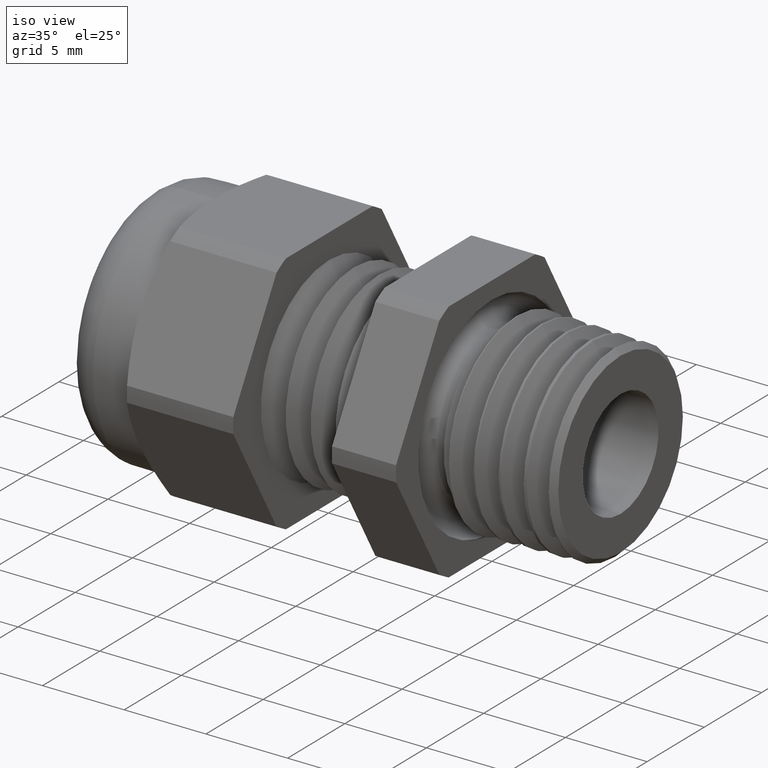
[diagram: clean part render]
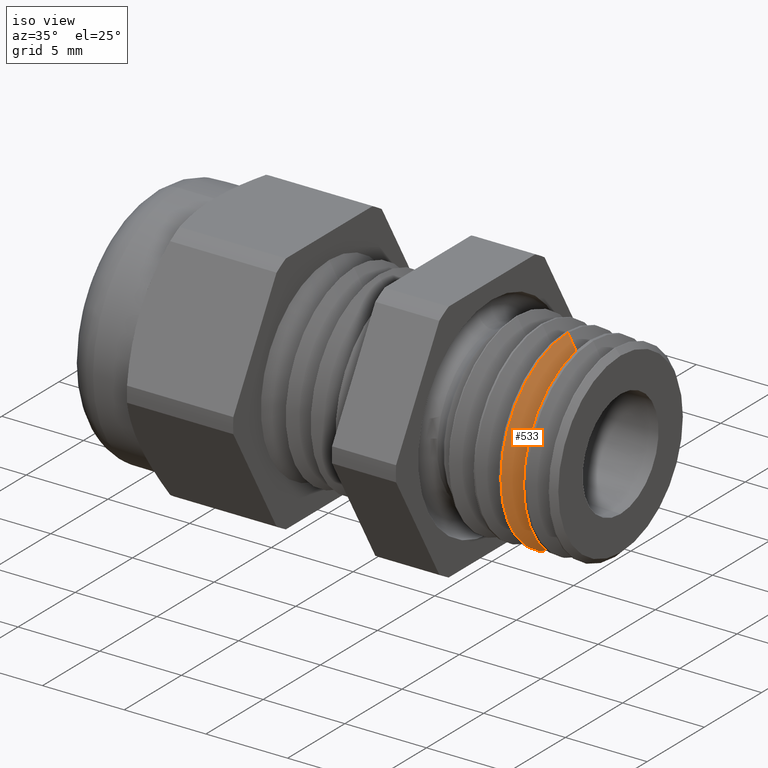
[diagram: same view with one face highlighted and labeled with its STEP entity id]
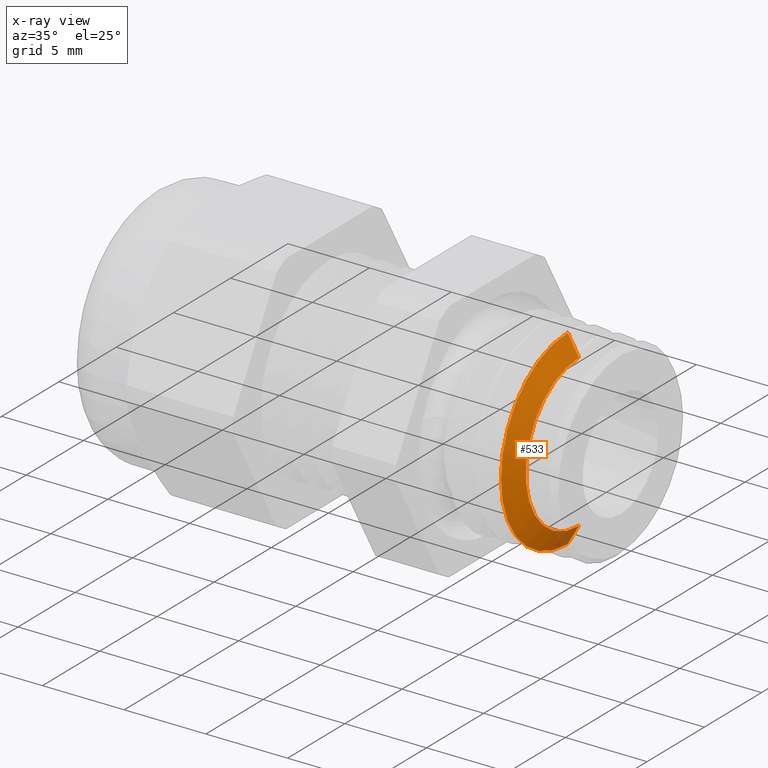
[diagram: x-ray of the same camera — body ghosted, the highlighted face saturated]
A machine part, iso view. The second image highlights one B-rep face of the part: STEP entity #533.
The next image is the same camera in x-ray: the body ghosted, the highlighted face saturated — about 4% of this face is hidden behind the body in this view.
In plain terms, the highlighted conical surface has half-angle 60 deg.
Its self-contained STEP definition (entity closure, byte-faithful):
#104 = EDGE_CURVE ( 'NONE', #228, #231, #1069, .T. ) ;
#226 = EDGE_CURVE ( 'NONE', #2861, #228, #1275, .T. ) ;
#228 = VERTEX_POINT ( 'NONE', #1267 ) ;
#231 = VERTEX_POINT ( 'NONE', #1326 ) ;
#232 = EDGE_CURVE ( 'NONE', #2868, #231, #1325, .T. ) ;
#515 = ORIENTED_EDGE ( 'NONE', *, *, #104, .T. ) ;
#533 = ADVANCED_FACE ( 'NONE', ( #1860 ), #1855, .T. ) ;
#534 = EDGE_LOOP ( 'NONE', ( #535, #536, #538, #515 ) ) ;
#535 = ORIENTED_EDGE ( 'NONE', *, *, #232, .F. ) ;
#536 = ORIENTED_EDGE ( 'NONE', *, *, #537, .T. ) ;
#537 = EDGE_CURVE ( 'NONE', #2868, #2861, #1849, .T. ) ;
#538 = ORIENTED_EDGE ( 'NONE', *, *, #226, .T. ) ;
#1065 = DIRECTION ( 'NONE',  ( 0.0000000000000000000, 0.0000000000000000000, 1.000000000000000000 ) ) ;
#1066 = DIRECTION ( 'NONE',  ( 1.000000000000000000, 0.0000000000000000000, 0.0000000000000000000 ) ) ;
#1067 = CARTESIAN_POINT ( 'NONE',  ( 0.1827630944989479800, 0.0000000000000000000, 0.0000000000000000000 ) ) ;
#1068 = AXIS2_PLACEMENT_3D ( 'NONE', #1067, #1066, #1065 ) ;
#1069 = CIRCLE ( 'NONE', #1068, 0.2302141799417087300 ) ;
#1267 = CARTESIAN_POINT ( 'NONE',  ( 0.1827630944989479800, 0.0000000000000000000, 0.2302141799417087300 ) ) ;
#1268 = DIRECTION ( 'NONE',  ( -0.4999999999999970000, 0.0000000000000000000, 0.8660254037844403700 ) ) ;
#1269 = VECTOR ( 'NONE', #1268, 39.37007874015748100 ) ;
#1270 = CARTESIAN_POINT ( 'NONE',  ( 0.1800000000000004100, 0.0000000000000000000, 0.2349999999999999600 ) ) ;
#1275 = LINE ( 'NONE', #1270, #1269 ) ;
#1322 = DIRECTION ( 'NONE',  ( -0.4999999999999970000, 1.060575238724909100E-016, -0.8660254037844403700 ) ) ;
#1323 = VECTOR ( 'NONE', #1322, 39.37007874015748100 ) ;
#1324 = CARTESIAN_POINT ( 'NONE',  ( 0.1800000000000004100, 2.877919977996279200E-017, -0.2349999999999999600 ) ) ;
#1325 = LINE ( 'NONE', #1324, #1323 ) ;
#1326 = CARTESIAN_POINT ( 'NONE',  ( 0.1827630944989479800, 2.820183476668133100E-017, -0.2302141799417087300 ) ) ;
#1846 = DIRECTION ( 'NONE',  ( 0.0000000000000000000, 0.0000000000000000000, 1.000000000000000000 ) ) ;
#1847 = DIRECTION ( 'NONE',  ( -1.000000000000000000, 0.0000000000000000000, 0.0000000000000000000 ) ) ;
#1848 = AXIS2_PLACEMENT_3D ( 'NONE', #1854, #1847, #1846 ) ;
#1849 = CIRCLE ( 'NONE', #1848, 0.1830384999999999700 ) ;
#1850 = DIRECTION ( 'NONE',  ( 0.0000000000000000000, 0.0000000000000000000, 1.000000000000000000 ) ) ;
#1851 = DIRECTION ( 'NONE',  ( -1.000000000000000000, 0.0000000000000000000, 0.0000000000000000000 ) ) ;
#1852 = CARTESIAN_POINT ( 'NONE',  ( 0.1800000000000004100, 0.0000000000000000000, 0.0000000000000000000 ) ) ;
#1853 = AXIS2_PLACEMENT_3D ( 'NONE', #1852, #1851, #1850 ) ;
#1854 = CARTESIAN_POINT ( 'NONE',  ( 0.2099999860124968900, 0.0000000000000000000, 0.0000000000000000000 ) ) ;
#1855 = CONICAL_SURFACE ( 'NONE', #1853, 0.2349999999999999600, 1.047197551196601200 ) ;
#1860 = FACE_OUTER_BOUND ( 'NONE', #534, .T. ) ;
#2389 = CARTESIAN_POINT ( 'NONE',  ( 0.2099999860124968900, 2.530442858648395600E-017, -0.1830384999999999700 ) ) ;
#2403 = CARTESIAN_POINT ( 'NONE',  ( 0.2099999860124968900, 0.0000000000000000000, 0.1830384999999999700 ) ) ;
#2861 = VERTEX_POINT ( 'NONE', #2403 ) ;
#2868 = VERTEX_POINT ( 'NONE', #2389 ) ;